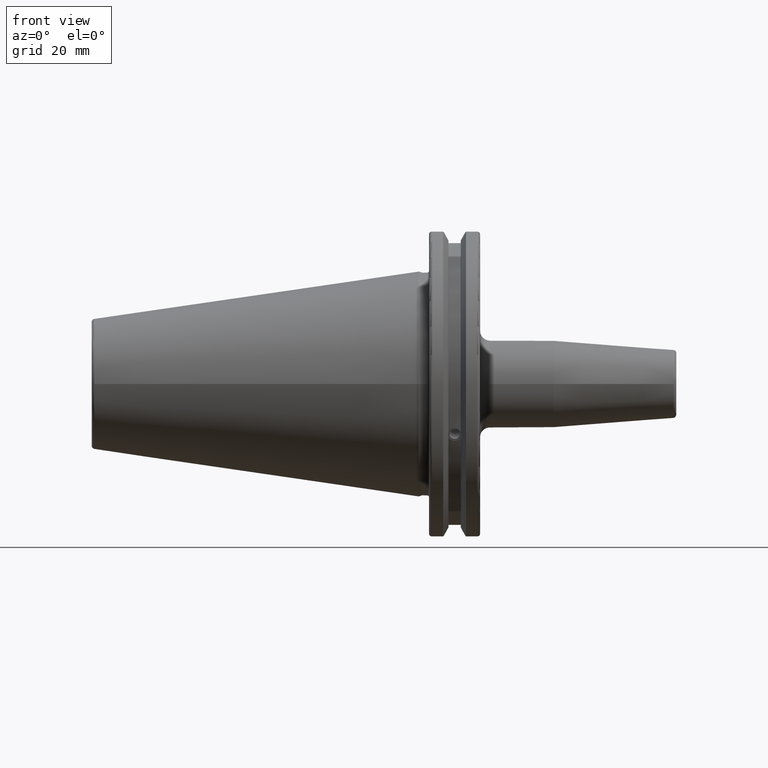
[diagram: clean part render]
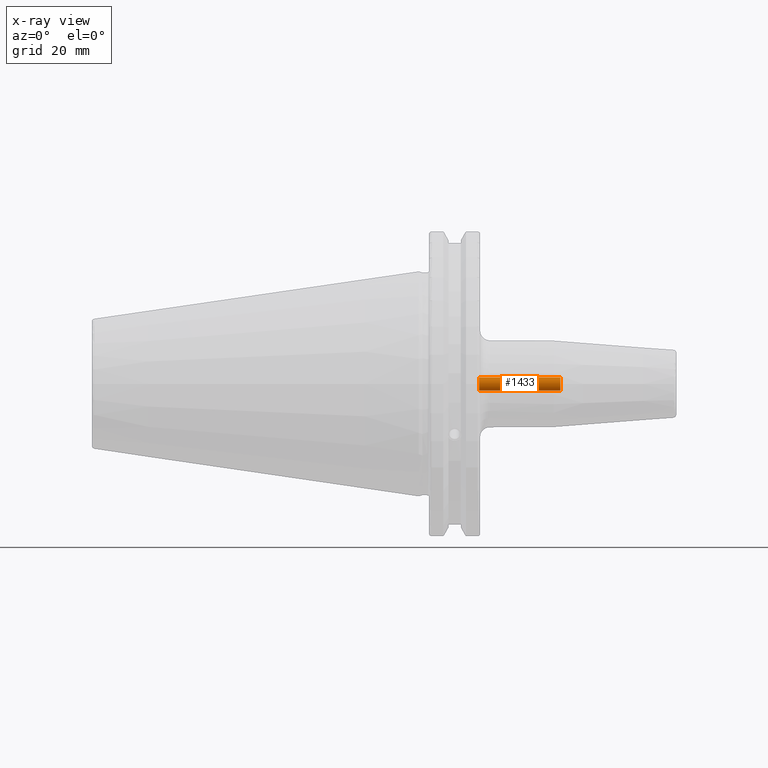
[diagram: x-ray — body ghosted, one internal face saturated and labeled with its STEP entity id]
A machine part, front view, then the same camera in x-ray: the body is ghosted and one INTERNAL B-rep face — a face not visible from any outside direction — is saturated and labeled: STEP entity #1433.
In plain terms, the highlighted cylindrical surface (bore or boss wall) has radius 2.067 mm, axis along (1, 0, 0).
Its self-contained STEP definition (entity closure, byte-faithful):
#96=LINE('',#2169,#186);
#186=VECTOR('',#1759,2.067);
#265=CYLINDRICAL_SURFACE('',#1556,2.067);
#354=FACE_OUTER_BOUND('',#440,.T.);
#440=EDGE_LOOP('',(#1021,#1022,#1023,#1024,#1025));
#550=CIRCLE('',#1557,2.067);
#551=CIRCLE('',#1558,2.067);
#552=CIRCLE('',#1559,2.067);
#631=VERTEX_POINT('',#2166);
#632=VERTEX_POINT('',#2168);
#633=VERTEX_POINT('',#2170);
#785=EDGE_CURVE('',#631,#631,#550,.T.);
#786=EDGE_CURVE('',#631,#632,#96,.T.);
#787=EDGE_CURVE('',#633,#632,#551,.T.);
#788=EDGE_CURVE('',#632,#633,#552,.T.);
#1021=ORIENTED_EDGE('',*,*,#785,.F.);
#1022=ORIENTED_EDGE('',*,*,#786,.T.);
#1023=ORIENTED_EDGE('',*,*,#787,.F.);
#1024=ORIENTED_EDGE('',*,*,#788,.F.);
#1025=ORIENTED_EDGE('',*,*,#786,.F.);
#1433=ADVANCED_FACE('',(#354),#265,.F.);
#1556=AXIS2_PLACEMENT_3D('',#2165,#1755,#1756);
#1557=AXIS2_PLACEMENT_3D('',#2167,#1757,#1758);
#1558=AXIS2_PLACEMENT_3D('',#2171,#1760,#1761);
#1559=AXIS2_PLACEMENT_3D('',#2172,#1762,#1763);
#1755=DIRECTION('center_axis',(1.,0.,0.));
#1756=DIRECTION('ref_axis',(0.,0.,-1.));
#1757=DIRECTION('center_axis',(-1.,0.,0.));
#1758=DIRECTION('ref_axis',(0.,0.,-1.));
#1759=DIRECTION('',(-1.,0.,0.));
#1760=DIRECTION('center_axis',(1.,0.,0.));
#1761=DIRECTION('ref_axis',(0.,0.,-1.));
#1762=DIRECTION('center_axis',(1.,0.,0.));
#1763=DIRECTION('ref_axis',(0.,0.,-1.));
#2165=CARTESIAN_POINT('Origin',(-147.228560080512,0.,0.));
#2166=CARTESIAN_POINT('',(44.,2.53134493383758E-16,2.067));
#2167=CARTESIAN_POINT('Origin',(44.,0.,0.));
#2168=CARTESIAN_POINT('',(18.7587754307973,-2.53134493383758E-16,2.067));
#2169=CARTESIAN_POINT('',(-147.228560080512,-2.53134493383758E-16,2.067));
#2170=CARTESIAN_POINT('',(18.7587754307973,-2.53134493383759E-16,-2.06700000000001));
#2171=CARTESIAN_POINT('Origin',(18.7587754307973,0.,0.));
#2172=CARTESIAN_POINT('Origin',(18.7587754307973,0.,0.));